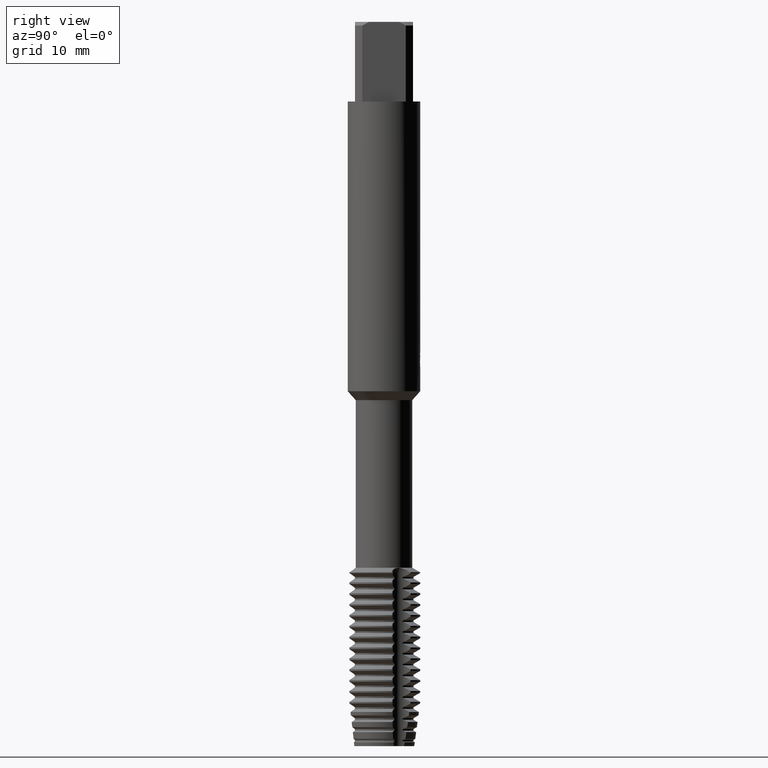
[diagram: clean part render]
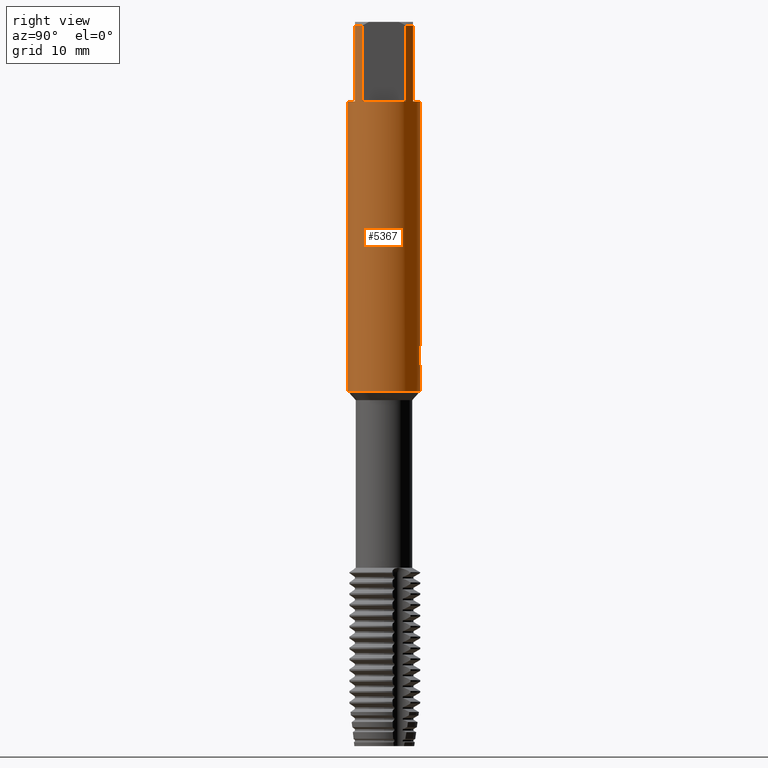
[diagram: same view with one face highlighted and labeled with its STEP entity id]
A machine part, right view. The second image highlights one B-rep face of the part: STEP entity #5367.
In plain terms, the highlighted cylindrical surface (edge-blend (fillet) strip) has radius 5 mm, axis along (-0, -0, 1).
Its self-contained STEP definition (entity closure, byte-faithful):
#2059=VERTEX_POINT('',#6130);
#2319=VERTEX_POINT('',#6423);
#2421=VERTEX_POINT('',#6530);
#2475=VERTEX_POINT('',#6587);
#2645=EDGE_CURVE('',#4073,#2711,#6781,.T.);
#2687=EDGE_CURVE('',#6041,#2319,#6828,.T.);
#2711=VERTEX_POINT('',#6853);
#2781=EDGE_CURVE('',#5865,#2059,#6930,.T.);
#2851=VERTEX_POINT('',#7005);
#2869=EDGE_CURVE('',#5425,#3605,#7024,.T.);
#3085=EDGE_CURVE('',#5677,#3981,#7260,.T.);
#3191=EDGE_CURVE('',#2319,#3291,#7373,.T.);
#3243=VERTEX_POINT('',#7427);
#3291=VERTEX_POINT('',#7477);
#3467=VERTEX_POINT('',#7669);
#3489=VERTEX_POINT('',#7694);
#3605=VERTEX_POINT('',#7823);
#3643=EDGE_CURVE('',#4547,#5677,#7863,.T.);
#3863=VERTEX_POINT('',#8099);
#3981=VERTEX_POINT('',#8222);
#4073=VERTEX_POINT('',#8319);
#4165=EDGE_CURVE('',#3605,#5865,#8419,.T.);
#4175=EDGE_CURVE('',#2059,#3863,#8430,.T.);
#4197=EDGE_CURVE('',#3243,#3489,#8453,.T.);
#4239=EDGE_CURVE('',#4547,#2421,#8500,.T.);
#4345=EDGE_CURVE('',#3489,#2851,#8619,.T.);
#4547=VERTEX_POINT('',#8837);
#4549=EDGE_CURVE('',#3467,#5425,#8839,.T.);
#4647=EDGE_CURVE('',#3291,#3243,#8941,.T.);
#4863=EDGE_CURVE('',#2475,#3467,#9178,.T.);
#5257=VERTEX_POINT('',#9616);
#5367=ADVANCED_FACE('',(#9737),#9738,.T.);
#5425=VERTEX_POINT('',#9802);
#5433=EDGE_CURVE('',#3863,#2421,#9810,.T.);
#5677=VERTEX_POINT('',#10077);
#5683=EDGE_CURVE('',#3981,#6041,#10084,.T.);
#5865=VERTEX_POINT('',#10282);
#5907=EDGE_CURVE('',#2475,#5257,#10329,.T.);
#6033=EDGE_CURVE('',#5257,#4073,#10467,.T.);
#6039=EDGE_CURVE('',#2851,#2711,#10473,.T.);
#6041=VERTEX_POINT('',#10475);
#6130=CARTESIAN_POINT('',(1.33721006514658,4.81786978255647,-45.1400484364821));
#6423=CARTESIAN_POINT('',(4.0,3.0,-11.0));
#6530=CARTESIAN_POINT('',(-9.75547279520024E-015,5.0,-45.6482688117743));
#6587=CARTESIAN_POINT('',(-4.2179236924284E-015,5.0,-47.6560253601033));
#6781=LINE('',#11545,#11546);
#6828=LINE('',#11627,#11628);
#6853=CARTESIAN_POINT('',(6.12303176911189E-016,-5.0,-11.0));
#6930=LINE('',#11798,#11799);
#7005=CARTESIAN_POINT('',(3.0,-4.0,-11.0));
#7024=LINE('',#11998,#11999);
#7260=LINE('',#12410,#12411);
#7373=CIRCLE('',#12636,5.0);
#7427=CARTESIAN_POINT('',(4.0,-3.0,-0.5));
#7477=CARTESIAN_POINT('',(4.0,-3.0,-11.0));
#7669=CARTESIAN_POINT('',(0.29010312703583,4.99157692274536,-47.6248328990228));
#7694=CARTESIAN_POINT('',(3.0,-4.0,-0.5));
#7823=CARTESIAN_POINT('',(0.873560781758956,4.92309776061503,-47.3837351791531));
#7863=CIRCLE('',#13468,5.0);
#8099=CARTESIAN_POINT('',(0.799431726384364,4.93567714856332,-44.625000276873));
#8222=CARTESIAN_POINT('',(3.0,4.0,-0.5));
#8319=CARTESIAN_POINT('',(6.12303176911189E-016,-5.0,-51.0));
#8419=B_SPLINE_CURVE_WITH_KNOTS('',3,(#14538,#14539,#14540,#14541,#14542,#14543,#14544,#14545,#14546,#14547),.UNSPECIFIED.,.F.,.F.,(4,2,2,2,4),(8.03978938391207,8.34870158568316,8.65761378745426,8.96684541549285,9.27607704353145),.UNSPECIFIED.);
#8430=B_SPLINE_CURVE_WITH_KNOTS('',3,(#14567,#14568,#14569,#14570,#14571,#14572,#14573,#14574,#14575,#14576),.UNSPECIFIED.,.F.,.F.,(4,2,2,2,4),(0.618463277568802,0.927694916353203,1.2369265551376,1.54583876733634,1.85475097953508),.UNSPECIFIED.);
#8453=CIRCLE('',#14606,5.0);
#8500=LINE('',#14680,#14681);
#8619=LINE('',#14887,#14888);
#8837=CARTESIAN_POINT('',(-6.12303176911189E-016,5.0,-11.0));
#8839=ELLIPSE('',#15271,15.2399728668489,5.0);
#8941=LINE('',#15436,#15437);
#9178=B_SPLINE_CURVE_WITH_KNOTS('',3,(#15843,#15844,#15845,#15846,#15847,#15848,#15849,#15850,#15851,#15852,#15853,#15854,#15855,#15856,#15857,#15858),.UNSPECIFIED.,.F.,.F.,(4,2,2,2,2,2,2,4),(5.87517564836088,6.18447732711525,6.49384941721167,6.8032215073081,7.11259359740452,7.42196568750094,7.73087791711931,8.03979014673768),.UNSPECIFIED.);
#9616=CARTESIAN_POINT('',(0.0,5.0,-51.0));
#9737=FACE_OUTER_BOUND('',#16797,.T.);
#9738=CYLINDRICAL_SURFACE('',#16798,5.0);
#9802=CARTESIAN_POINT('',(0.873560781758957,4.92309776061503,-45.9448931596091));
#9810=B_SPLINE_CURVE_WITH_KNOTS('',3,(#16934,#16935,#16936,#16937,#16938,#16939,#16940,#16941,#16942,#16943,#16944,#16945,#16946,#16947,#16948,#16949,#16950,#16951,#16952,#16953,#16954,#16955,#16956,#16957,#16958,#16959,#16960),.UNSPECIFIED.,.F.,.F.,(4,2,3,2,2,2,2,2,2,2,2,2,4),(-0.542486104801738,-0.271243052400869,0.0,0.271243052400869,0.542486104801738,0.814298814936944,1.08611152507215,1.35696845964793,1.62782539422372,1.89896433698445,2.17010327974519,2.44124222250593,2.71238116526667),.UNSPECIFIED.);
#10077=CARTESIAN_POINT('',(3.0,4.0,-11.0));
#10084=CIRCLE('',#17466,5.0);
#10282=CARTESIAN_POINT('',(1.33721006514658,4.81786978255646,-46.9151657003257));
#10329=LINE('',#17950,#17951);
#10467=CIRCLE('',#18200,5.0);
#10473=CIRCLE('',#18209,5.0);
#10475=CARTESIAN_POINT('',(4.0,3.0,-0.5));
#11545=CARTESIAN_POINT('',(6.12303176911189E-016,-5.0,-25.75));
#11546=VECTOR('',#19098,1.0);
#11627=CARTESIAN_POINT('',(4.0,3.0,-5.75));
#11628=VECTOR('',#19163,1.0);
#11798=CARTESIAN_POINT('',(1.33721006514658,4.81786978255646,-46.0276070684039));
#11799=VECTOR('',#19263,1.0);
#11998=CARTESIAN_POINT('',(0.873560781758957,4.92309776061503,-46.6643141693811));
#11999=VECTOR('',#19358,1.0);
#12410=CARTESIAN_POINT('',(3.0,4.0,-5.75));
#12411=VECTOR('',#19603,1.0);
#12636=AXIS2_PLACEMENT_3D('',#19700,#19701,#19702);
#13468=AXIS2_PLACEMENT_3D('',#20327,#20328,#20329);
#14538=CARTESIAN_POINT('',(0.59673654811075,4.96426283471664,-47.5315353597382));
#14539=CARTESIAN_POINT('',(0.696940415976897,4.95221768077605,-47.4898861955132));
#14540=CARTESIAN_POINT('',(0.792829678386019,4.93756175251447,-47.4381364650754));
#14541=CARTESIAN_POINT('',(0.969955792779438,4.90584148938556,-47.3188507691423));
#14542=CARTESIAN_POINT('',(1.05119214028325,4.88880718483703,-47.2513060709848));
#14543=CARTESIAN_POINT('',(1.1950179267128,4.85565484960812,-47.1075325659411));
#14544=CARTESIAN_POINT('',(1.2626239651647,4.83834796167933,-47.0262621113954));
#14545=CARTESIAN_POINT('',(1.38199541925442,4.80561327380657,-46.8490986142183));
#14546=CARTESIAN_POINT('',(1.43377096929139,4.79021953794996,-46.7532061077952));
#14547=CARTESIAN_POINT('',(1.47544633659596,4.77734843902196,-46.652992982926));
#14567=CARTESIAN_POINT('',(1.47544634459503,4.77734843655151,-45.4022211678144));
#14568=CARTESIAN_POINT('',(1.43377097583397,4.79021953600577,-45.3020080394811));
#14569=CARTESIAN_POINT('',(1.38199542398865,4.8056132724731,-45.2061155297459));
#14570=CARTESIAN_POINT('',(1.26262396572432,4.83834796156109,-45.0289520264488));
#14571=CARTESIAN_POINT('',(1.19501792490561,4.8556548500921,-44.9476815690952));
#14572=CARTESIAN_POINT('',(1.05119213349515,4.88880718633437,-44.803908059153));
#14573=CARTESIAN_POINT('',(0.969955783216371,4.90584149133193,-44.7363633587199));
#14574=CARTESIAN_POINT('',(0.792829662772182,4.93756175507685,-44.6170776587655));
#14575=CARTESIAN_POINT('',(0.696940397087141,4.95221768350352,-44.5653279265819));
#14576=CARTESIAN_POINT('',(0.596736525802593,4.96426283739822,-44.5236787609541));
#14606=AXIS2_PLACEMENT_3D('',#20874,#20875,#20876);
#14680=CARTESIAN_POINT('',(-6.12303176911189E-016,5.0,-25.75));
#14681=VECTOR('',#20933,1.0);
#14887=CARTESIAN_POINT('',(3.0,-4.0,-5.75));
#14888=VECTOR('',#21081,1.0);
#15271=AXIS2_PLACEMENT_3D('',#21444,#21445,#21446);
#15436=CARTESIAN_POINT('',(4.0,-3.0,-5.75));
#15437=VECTOR('',#21504,1.0);
#15843=CARTESIAN_POINT('',(-1.37919625933141,4.80601890115366,-46.9374404256203));
#15844=CARTESIAN_POINT('',(-1.31957521374487,4.82312851403775,-47.0259601597598));
#15845=CARTESIAN_POINT('',(-1.25205684175205,4.84126211135571,-47.107165451365));
#15846=CARTESIAN_POINT('',(-1.10836495207318,4.87616599259845,-47.2509115514073));
#15847=CARTESIAN_POINT('',(-1.0271524301646,4.89418890879516,-47.318486795378));
#15848=CARTESIAN_POINT('',(-0.850055905397223,4.92803532326639,-47.4378453591325));
#15849=CARTESIAN_POINT('',(-0.754172188044359,4.94382885968066,-47.4896375967458));
#15850=CARTESIAN_POINT('',(-0.55372599978085,4.97027232652294,-47.5730281920328));
#15851=CARTESIAN_POINT('',(-0.448990720596503,4.98092390938096,-47.6046924022892));
#15852=CARTESIAN_POINT('',(-0.237871423561602,4.99545922254228,-47.6463202804398));
#15853=CARTESIAN_POINT('',(-0.13148454027928,4.99933459384723,-47.6562723335086));
#15854=CARTESIAN_POINT('',(0.0746069172274575,5.00050365281921,-47.6562723335086));
#15855=CARTESIAN_POINT('',(0.180879006433096,4.99784409598263,-47.646349312763));
#15856=CARTESIAN_POINT('',(0.391840688075154,4.98574204084828,-47.6048000876985));
#15857=CARTESIAN_POINT('',(0.496532945230264,4.97630796240248,-47.5731849619546));
#15858=CARTESIAN_POINT('',(0.596736821506942,4.96426280185264,-47.5315357940623));
#16797=EDGE_LOOP('',(#22430,#22431,#22432,#22433,#22434,#22435,#22436,#22437,#22438,#22439,#22440,#22441,#22442,#22443,#22444,#22445,#22446,#22447,#22448,#22449));
#16798=AXIS2_PLACEMENT_3D('',#22450,#22451,#22452);
#16934=CARTESIAN_POINT('',(0.665122770091172,4.95556371169883,-44.4385963457478));
#16935=CARTESIAN_POINT('',(0.728735196954596,4.94702581852882,-44.5022777273236));
#16936=CARTESIAN_POINT('',(0.78396416610347,4.93829748078097,-44.5829436035979));
#16937=CARTESIAN_POINT('',(0.8573019334629,4.92609533329604,-44.7599114173306));
#16938=CARTESIAN_POINT('',(0.875400981188567,4.92277087849253,-44.8562276617865));
#16939=CARTESIAN_POINT('',(0.875400981188567,4.92277087849253,-44.9466420125868));
#16940=CARTESIAN_POINT('',(0.875400981188567,4.92277087849253,-45.0370563633871));
#16941=CARTESIAN_POINT('',(0.857301933462898,4.92609533329604,-45.1333726078429));
#16942=CARTESIAN_POINT('',(0.783964166103465,4.93829748078097,-45.3103404215757));
#16943=CARTESIAN_POINT('',(0.728735196954596,4.94702581852882,-45.39100629785));
#16944=CARTESIAN_POINT('',(0.601376746032753,4.96411953593411,-45.5185028030135));
#16945=CARTESIAN_POINT('',(0.520641197115554,4.97361399538109,-45.5738552844728));
#16946=CARTESIAN_POINT('',(0.343503822480858,4.98897870858442,-45.6473670116056));
#16947=CARTESIAN_POINT('',(0.247086219827461,4.9947129574863,-45.6655166027747));
#16948=CARTESIAN_POINT('',(0.0662849978754683,5.00037576555244,-45.6655166027747));
#16949=CARTESIAN_POINT('',(-0.0299853354073752,5.00069421157822,-45.647481035651));
#16950=CARTESIAN_POINT('',(-0.207042529230845,4.99649628332508,-45.5741606175219));
#16951=CARTESIAN_POINT('',(-0.287834149954029,4.99211780487336,-45.5188794313977));
#16952=CARTESIAN_POINT('',(-0.415469449620835,4.98311973872716,-45.3913325263823));
#16953=CARTESIAN_POINT('',(-0.470822894462521,4.97792007270922,-45.3105206130663));
#16954=CARTESIAN_POINT('',(-0.544264412763406,4.97042641093864,-45.1333690868499));
#16955=CARTESIAN_POINT('',(-0.562348199187247,4.96827580785033,-45.0370216601737));
#16956=CARTESIAN_POINT('',(-0.562348199187247,4.96827580785033,-44.8562623649999));
#16957=CARTESIAN_POINT('',(-0.544264412763406,4.97042641093864,-44.7599149383237));
#16958=CARTESIAN_POINT('',(-0.470822894462521,4.97792007270922,-44.5827634121072));
#16959=CARTESIAN_POINT('',(-0.415469449620836,4.98311973872716,-44.5019514987913));
#16960=CARTESIAN_POINT('',(-0.351618594554054,4.98762111271133,-44.4381448640467));
#17466=AXIS2_PLACEMENT_3D('',#22829,#22830,#22831);
#17950=CARTESIAN_POINT('',(-6.12303176911189E-016,5.0,-25.75));
#17951=VECTOR('',#23210,1.0);
#18200=AXIS2_PLACEMENT_3D('',#23358,#23359,#23360);
#18209=AXIS2_PLACEMENT_3D('',#23362,#23363,#23364);
#19098=DIRECTION('',(-0.0,-0.0,1.0));
#19163=DIRECTION('',(0.0,0.0,-1.0));
#19263=DIRECTION('',(-0.0,-0.0,1.0));
#19358=DIRECTION('',(0.0,0.0,-1.0));
#19603=DIRECTION('',(-0.0,-0.0,1.0));
#19700=CARTESIAN_POINT('',(0.0,0.0,-11.0));
#19701=DIRECTION('',(0.0,0.0,-1.0));
#19702=DIRECTION('',(0.0,1.0,0.0));
#20327=CARTESIAN_POINT('',(0.0,0.0,-11.0));
#20328=DIRECTION('',(0.0,0.0,-1.0));
#20329=DIRECTION('',(0.0,1.0,0.0));
#20874=CARTESIAN_POINT('',(0.0,0.0,-0.5));
#20875=DIRECTION('',(0.0,0.0,-1.0));
#20876=DIRECTION('',(0.0,1.0,0.0));
#20933=DIRECTION('',(0.0,0.0,-1.0));
#21081=DIRECTION('',(0.0,0.0,-1.0));
#21444=CARTESIAN_POINT('',(0.0,0.0,-48.4601219173269));
#21445=DIRECTION('',(0.944648353914092,0.0,-0.328084573619969));
#21446=DIRECTION('',(0.328084573619969,-0.0,0.944648353914092));
#21504=DIRECTION('',(-0.0,-0.0,1.0));
#22430=ORIENTED_EDGE('',*,*,#4239,.F.);
#22431=ORIENTED_EDGE('',*,*,#3643,.T.);
#22432=ORIENTED_EDGE('',*,*,#3085,.T.);
#22433=ORIENTED_EDGE('',*,*,#5683,.T.);
#22434=ORIENTED_EDGE('',*,*,#2687,.T.);
#22435=ORIENTED_EDGE('',*,*,#3191,.T.);
#22436=ORIENTED_EDGE('',*,*,#4647,.T.);
#22437=ORIENTED_EDGE('',*,*,#4197,.T.);
#22438=ORIENTED_EDGE('',*,*,#4345,.T.);
#22439=ORIENTED_EDGE('',*,*,#6039,.T.);
#22440=ORIENTED_EDGE('',*,*,#2645,.F.);
#22441=ORIENTED_EDGE('',*,*,#6033,.F.);
#22442=ORIENTED_EDGE('',*,*,#5907,.F.);
#22443=ORIENTED_EDGE('',*,*,#4863,.T.);
#22444=ORIENTED_EDGE('',*,*,#4549,.T.);
#22445=ORIENTED_EDGE('',*,*,#2869,.T.);
#22446=ORIENTED_EDGE('',*,*,#4165,.T.);
#22447=ORIENTED_EDGE('',*,*,#2781,.T.);
#22448=ORIENTED_EDGE('',*,*,#4175,.T.);
#22449=ORIENTED_EDGE('',*,*,#5433,.T.);
#22450=CARTESIAN_POINT('',(0.0,0.0,-25.75));
#22451=DIRECTION('',(-0.0,-0.0,1.0));
#22452=DIRECTION('',(0.0,1.0,0.0));
#22829=CARTESIAN_POINT('',(0.0,0.0,-0.5));
#22830=DIRECTION('',(0.0,0.0,-1.0));
#22831=DIRECTION('',(0.0,1.0,0.0));
#23210=DIRECTION('',(0.0,0.0,-1.0));
#23358=CARTESIAN_POINT('',(0.0,0.0,-51.0));
#23359=DIRECTION('',(0.0,0.0,-1.0));
#23360=DIRECTION('',(0.0,1.0,0.0));
#23362=CARTESIAN_POINT('',(0.0,0.0,-11.0));
#23363=DIRECTION('',(0.0,0.0,-1.0));
#23364=DIRECTION('',(0.0,1.0,0.0));